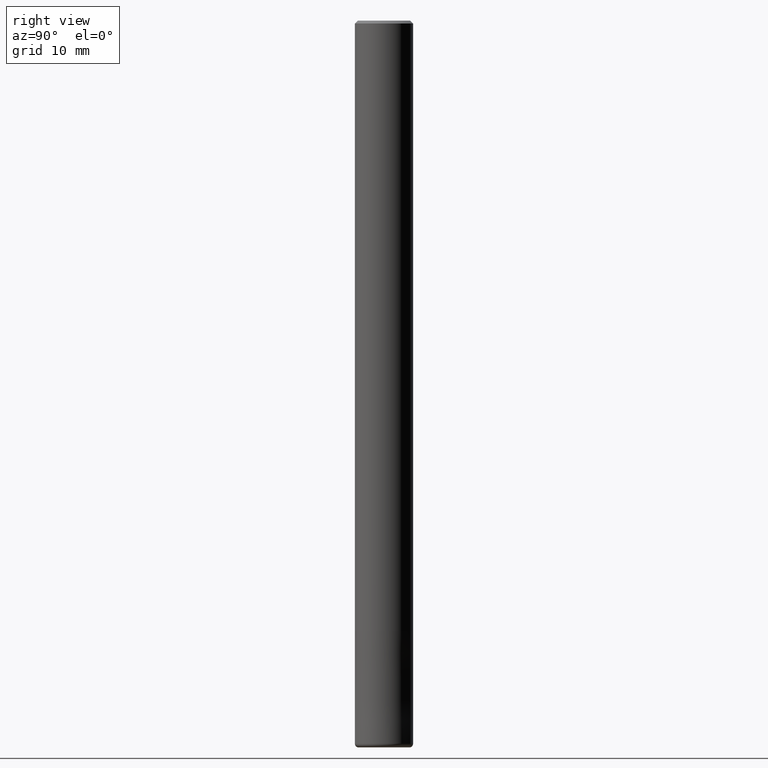
[diagram: clean part render]
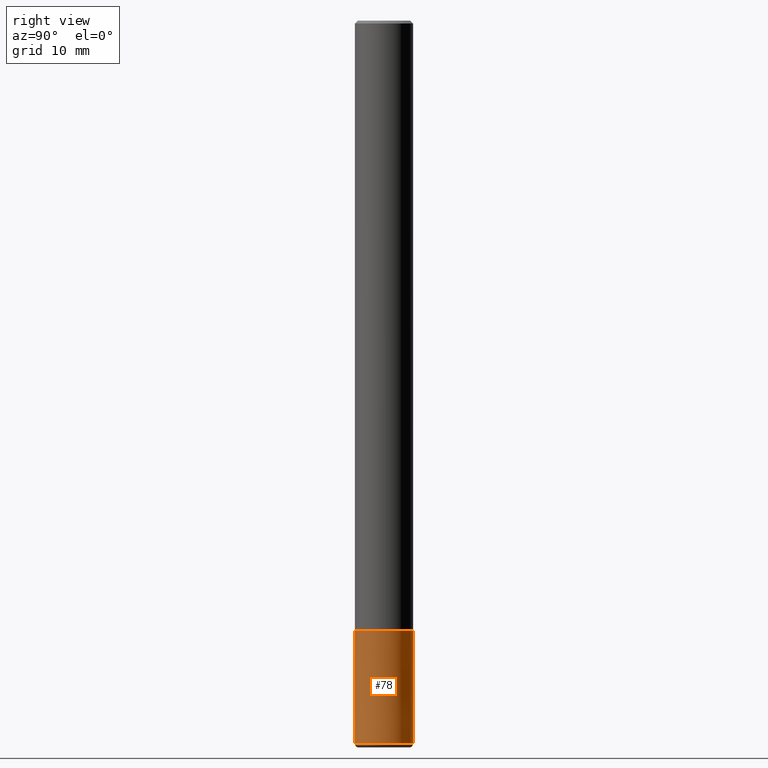
[diagram: same view with one face highlighted and labeled with its STEP entity id]
A machine part, right view. The second image highlights one B-rep face of the part: STEP entity #78.
In plain terms, the highlighted conical surface has half-angle 0 deg.
Its self-contained STEP definition (entity closure, byte-faithful):
#76=VERTEX_POINT('',#181);
#78=ADVANCED_FACE('',(#183),#184,.T.);
#90=VERTEX_POINT('',#199);
#102=EDGE_CURVE('',#108,#76,#211,.T.);
#108=VERTEX_POINT('',#217);
#114=EDGE_CURVE('',#154,#90,#223,.T.);
#130=EDGE_CURVE('',#108,#154,#241,.T.);
#148=EDGE_CURVE('',#90,#76,#263,.T.);
#154=VERTEX_POINT('',#270);
#181=CARTESIAN_POINT('',(4.89830295465413E-016,-3.9999,-84.0));
#183=FACE_OUTER_BOUND('',#292,.T.);
#184=CONICAL_SURFACE('',#293,3.99995,6.45161290314991E-006);
#199=CARTESIAN_POINT('',(4.89842541528951E-016,-4.0,-99.5));
#211=CIRCLE('',#325,3.9999);
#217=CARTESIAN_POINT('',(0.0,3.9999,-84.0));
#223=CIRCLE('',#341,4.0);
#241=LINE('',#365,#366);
#263=LINE('',#393,#394);
#270=CARTESIAN_POINT('',(0.0,4.0,-99.5));
#292=EDGE_LOOP('',(#416,#417,#418,#419));
#293=AXIS2_PLACEMENT_3D('',#420,#421,#422);
#325=AXIS2_PLACEMENT_3D('',#450,#451,#452);
#341=AXIS2_PLACEMENT_3D('',#457,#458,#459);
#365=CARTESIAN_POINT('',(-4.89836418497182E-016,3.99995,-91.75));
#366=VECTOR('',#486,1.0);
#393=CARTESIAN_POINT('',(4.89836418497182E-016,-3.99995,-91.75));
#394=VECTOR('',#527,1.0);
#416=ORIENTED_EDGE('',*,*,#130,.F.);
#417=ORIENTED_EDGE('',*,*,#102,.T.);
#418=ORIENTED_EDGE('',*,*,#148,.F.);
#419=ORIENTED_EDGE('',*,*,#114,.F.);
#420=CARTESIAN_POINT('',(0.0,0.0,-91.75));
#421=DIRECTION('',(0.0,-0.0,-1.0));
#422=DIRECTION('',(0.0,1.0,0.0));
#450=CARTESIAN_POINT('',(0.0,0.0,-84.0));
#451=DIRECTION('',(0.0,0.0,-1.0));
#452=DIRECTION('',(0.0,1.0,0.0));
#457=CARTESIAN_POINT('',(0.0,0.0,-99.5));
#458=DIRECTION('',(0.0,0.0,-1.0));
#459=DIRECTION('',(0.0,1.0,0.0));
#486=DIRECTION('',(-7.900686153545E-022,6.45161290310515E-006,-0.999999999979188));
#527=DIRECTION('',(-7.900686153545E-022,6.45161290310515E-006,0.999999999979188));